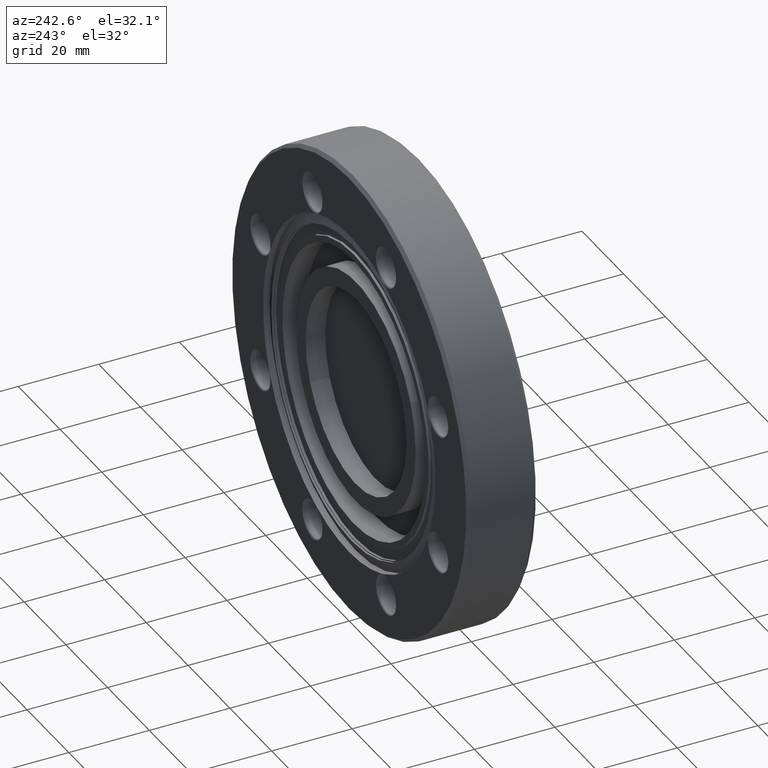
[diagram: clean part render]
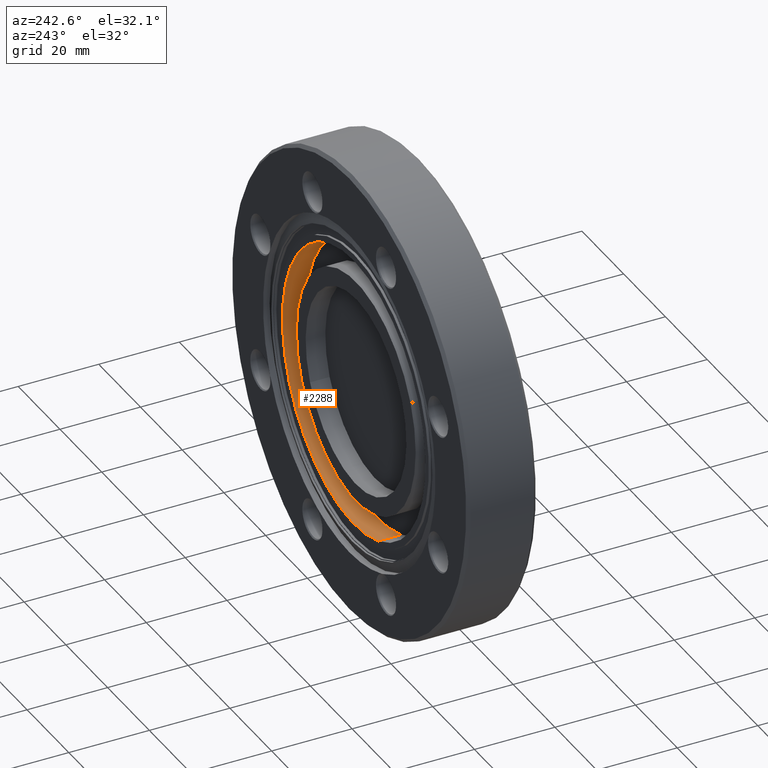
[diagram: same view with one face highlighted and labeled with its STEP entity id]
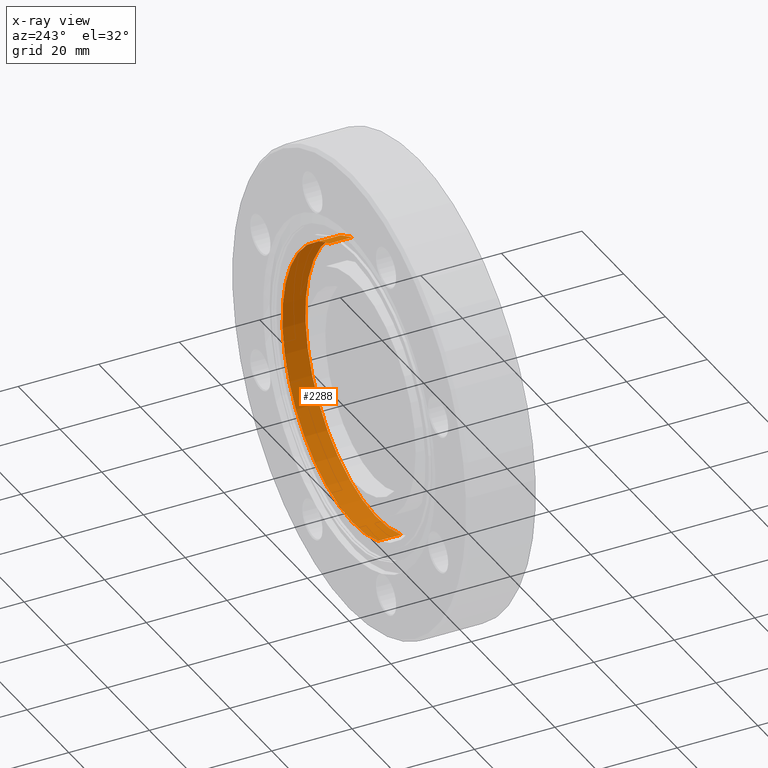
[diagram: x-ray of the same camera — body ghosted, the highlighted face saturated]
A machine part, auxiliary view. The second image highlights one B-rep face of the part: STEP entity #2288.
The next image is the same camera in x-ray: the body ghosted, the highlighted face saturated — about 0% of this face is hidden behind the body in this view.
In plain terms, the highlighted cylindrical surface (partial cylindrical patch) has radius 34.2646 mm, axis along (-0, 1, -0).
Its self-contained STEP definition (entity closure, byte-faithful):
#23 = DIRECTION ( 'NONE',  ( 2.517562128127537930E-17, 1.000000000000000000, -5.577538846473673737E-17 ) ) ;
#37 = EDGE_CURVE ( 'NONE', #2455, #305, #2749, .T. ) ;
#38 = VECTOR ( 'NONE', #2224, 39.37007874015748143 ) ;
#113 = LINE ( 'NONE', #1047, #2241 ) ;
#129 = DIRECTION ( 'NONE',  ( -1.507351704061755296E-17, 1.000000000000000000, -1.699636614603576539E-17 ) ) ;
#135 = VERTEX_POINT ( 'NONE', #1493 ) ;
#144 = AXIS2_PLACEMENT_3D ( 'NONE', #1419, #23, #2803 ) ;
#305 = VERTEX_POINT ( 'NONE', #1151 ) ;
#342 = DIRECTION ( 'NONE',  ( -1.507351704061755296E-17, 1.000000000000000000, -1.699636614603576539E-17 ) ) ;
#481 = AXIS2_PLACEMENT_3D ( 'NONE', #562, #342, #581 ) ;
#482 = CIRCLE ( 'NONE', #144, 1.349000000000000199 ) ;
#515 = CARTESIAN_POINT ( 'NONE',  ( 0.000000000000000000, -0.04599999999999999922, 0.000000000000000000 ) ) ;
#562 = CARTESIAN_POINT ( 'NONE',  ( 0.000000000000000000, -0.04599999999999999922, 0.000000000000000000 ) ) ;
#581 = DIRECTION ( 'NONE',  ( -0.3387050171380731611, -1.265681983721396522E-17, -0.9408926141518475506 ) ) ;
#1047 = CARTESIAN_POINT ( 'NONE',  ( -0.4569130681192608012, -0.04600000000000002004, -1.269264136490842798 ) ) ;
#1088 = ORIENTED_EDGE ( 'NONE', *, *, #2829, .T. ) ;
#1151 = CARTESIAN_POINT ( 'NONE',  ( -0.4569130681192608012, -0.04600000000000002004, -1.269264136490842798 ) ) ;
#1152 = EDGE_CURVE ( 'NONE', #2706, #135, #482, .T. ) ;
#1311 = CARTESIAN_POINT ( 'NONE',  ( 0.4569130681192606347, -0.04599999999999998535, 1.269264136490842798 ) ) ;
#1419 = CARTESIAN_POINT ( 'NONE',  ( 3.391541334138948800E-18, -0.2709999999999999631, 3.824182382858046828E-18 ) ) ;
#1450 = DIRECTION ( 'NONE',  ( -1.507351704061755296E-17, 1.000000000000000000, -1.699636614603576539E-17 ) ) ;
#1493 = CARTESIAN_POINT ( 'NONE',  ( -0.4569130681192607457, -0.2710000000000000187, -1.269264136490842576 ) ) ;
#1738 = AXIS2_PLACEMENT_3D ( 'NONE', #515, #1450, #2576 ) ;
#1931 = EDGE_CURVE ( 'NONE', #135, #305, #113, .T. ) ;
#1960 = FACE_OUTER_BOUND ( 'NONE', #2610, .T. ) ;
#2175 = CYLINDRICAL_SURFACE ( 'NONE', #481, 1.349000000000000421 ) ;
#2193 = LINE ( 'NONE', #1311, #38 ) ;
#2224 = DIRECTION ( 'NONE',  ( -1.507351704061755296E-17, 1.000000000000000000, -1.699636614603576539E-17 ) ) ;
#2241 = VECTOR ( 'NONE', #129, 39.37007874015748143 ) ;
#2275 = ORIENTED_EDGE ( 'NONE', *, *, #37, .T. ) ;
#2288 = ADVANCED_FACE ( 'NONE', ( #1960 ), #2175, .F. ) ;
#2366 = CARTESIAN_POINT ( 'NONE',  ( 0.4569130681192605792, -0.2709999999999999076, 1.269264136490842576 ) ) ;
#2455 = VERTEX_POINT ( 'NONE', #2655 ) ;
#2576 = DIRECTION ( 'NONE',  ( -0.3387050171380731611, -1.265681983721396522E-17, -0.9408926141518475506 ) ) ;
#2610 = EDGE_LOOP ( 'NONE', ( #2810, #1088, #2275, #2863 ) ) ;
#2655 = CARTESIAN_POINT ( 'NONE',  ( 0.4569130681192605792, -0.04599999999999997841, 1.269264136490842576 ) ) ;
#2706 = VERTEX_POINT ( 'NONE', #2366 ) ;
#2749 = CIRCLE ( 'NONE', #1738, 1.349000000000000421 ) ;
#2803 = DIRECTION ( 'NONE',  ( 0.000000000000000000, 5.062727934885587319E-17, 1.000000000000000000 ) ) ;
#2810 = ORIENTED_EDGE ( 'NONE', *, *, #1152, .F. ) ;
#2829 = EDGE_CURVE ( 'NONE', #2706, #2455, #2193, .T. ) ;
#2863 = ORIENTED_EDGE ( 'NONE', *, *, #1931, .F. ) ;